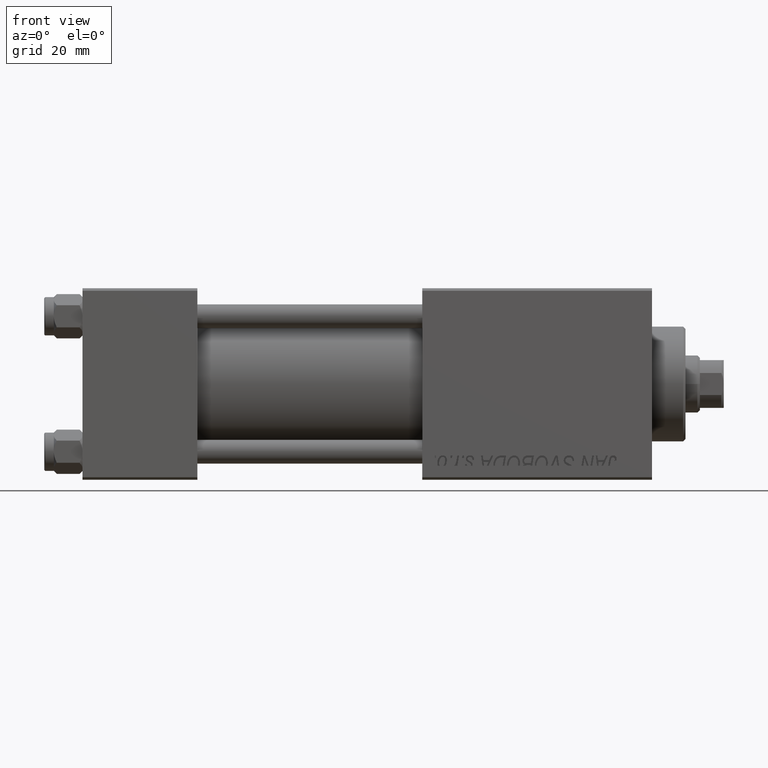
[diagram: clean part render]
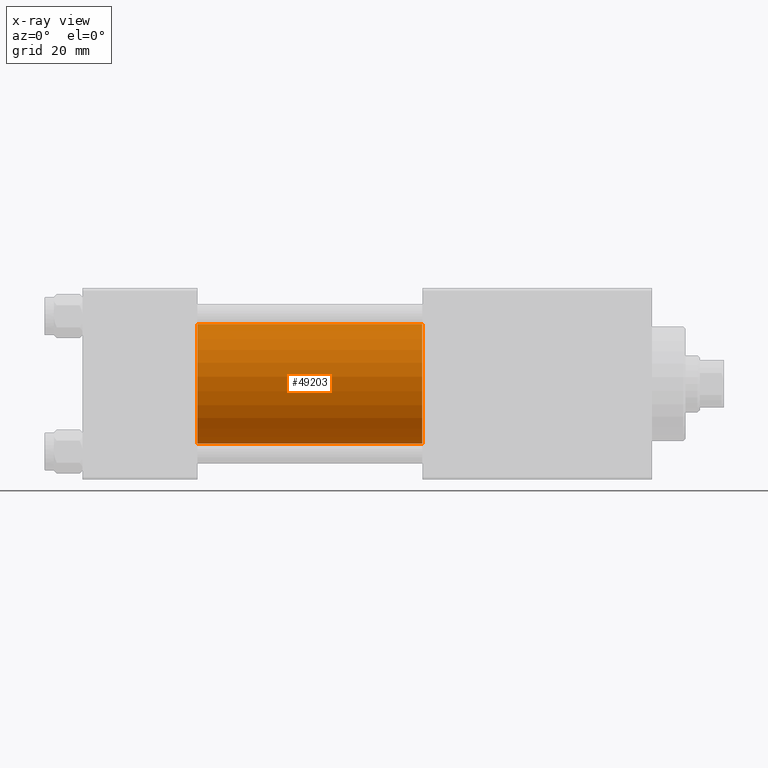
[diagram: x-ray — body ghosted, one internal face saturated and labeled with its STEP entity id]
A machine part, front view, then the same camera in x-ray: the body is ghosted and one INTERNAL B-rep face — a face not visible from any outside direction — is saturated and labeled: STEP entity #49203.
In plain terms, the highlighted cylindrical surface (partial cylindrical patch) has radius 12.5 mm, axis along (-1, -0, -0).
Its self-contained STEP definition (entity closure, byte-faithful):
#327 = DIRECTION ( 'NONE',  ( -1.000000000000000000, -0.000000000000000000, -0.000000000000000000 ) ) ;
#3810 = CIRCLE ( 'NONE', #5454, 12.49999999999999645 ) ;
#4096 = AXIS2_PLACEMENT_3D ( 'NONE', #21872, #6617, #45276 ) ;
#4123 = LINE ( 'NONE', #39476, #31820 ) ;
#5454 = AXIS2_PLACEMENT_3D ( 'NONE', #48836, #18049, #29260 ) ;
#6377 = DIRECTION ( 'NONE',  ( -1.000000000000000000, -0.000000000000000000, -0.000000000000000000 ) ) ;
#6617 = DIRECTION ( 'NONE',  ( 1.000000000000000000, 0.000000000000000000, 0.000000000000000000 ) ) ;
#8778 = VERTEX_POINT ( 'NONE', #19813 ) ;
#9858 = CARTESIAN_POINT ( 'NONE',  ( 71.00000000000001421, -2.602085213965210642E-15, 0.000000000000000000 ) ) ;
#14417 = CYLINDRICAL_SURFACE ( 'NONE', #35327, 12.49999999999999645 ) ;
#16088 = CARTESIAN_POINT ( 'NONE',  ( 71.00000000000001421, -2.602085213965210642E-15, 12.49999999999999645 ) ) ;
#17557 = LINE ( 'NONE', #25700, #22813 ) ;
#17928 = ORIENTED_EDGE ( 'NONE', *, *, #34117, .F. ) ;
#18049 = DIRECTION ( 'NONE',  ( 1.000000000000000000, 0.000000000000000000, 0.000000000000000000 ) ) ;
#19813 = CARTESIAN_POINT ( 'NONE',  ( 24.00000000000000000, -1.071276715031019515E-15, -12.49999999999999645 ) ) ;
#20174 = EDGE_CURVE ( 'NONE', #29678, #8778, #3810, .T. ) ;
#21542 = DIRECTION ( 'NONE',  ( 0.000000000000000000, 0.000000000000000000, 1.000000000000000000 ) ) ;
#21872 = CARTESIAN_POINT ( 'NONE',  ( 71.00000000000001421, -2.602085213965210642E-15, 0.000000000000000000 ) ) ;
#22186 = ORIENTED_EDGE ( 'NONE', *, *, #20174, .F. ) ;
#22813 = VECTOR ( 'NONE', #6377, 1000.000000000000000 ) ;
#25700 = CARTESIAN_POINT ( 'NONE',  ( 71.00000000000001421, -1.071276715031019515E-15, -12.49999999999999645 ) ) ;
#27585 = VERTEX_POINT ( 'NONE', #16088 ) ;
#29260 = DIRECTION ( 'NONE',  ( 0.000000000000000000, 0.000000000000000000, -1.000000000000000000 ) ) ;
#29678 = VERTEX_POINT ( 'NONE', #44279 ) ;
#29690 = FACE_OUTER_BOUND ( 'NONE', #33118, .T. ) ;
#30185 = DIRECTION ( 'NONE',  ( -1.000000000000000000, -0.000000000000000000, -0.000000000000000000 ) ) ;
#30310 = VERTEX_POINT ( 'NONE', #35411 ) ;
#30549 = EDGE_CURVE ( 'NONE', #30310, #8778, #17557, .T. ) ;
#31820 = VECTOR ( 'NONE', #327, 1000.000000000000000 ) ;
#32368 = EDGE_CURVE ( 'NONE', #27585, #30310, #43217, .T. ) ;
#33118 = EDGE_LOOP ( 'NONE', ( #35703, #48235, #22186, #17928 ) ) ;
#34117 = EDGE_CURVE ( 'NONE', #27585, #29678, #4123, .T. ) ;
#35327 = AXIS2_PLACEMENT_3D ( 'NONE', #9858, #30185, #21542 ) ;
#35411 = CARTESIAN_POINT ( 'NONE',  ( 71.00000000000001421, -1.071276715031019515E-15, -12.49999999999999645 ) ) ;
#35703 = ORIENTED_EDGE ( 'NONE', *, *, #32368, .T. ) ;
#39476 = CARTESIAN_POINT ( 'NONE',  ( 71.00000000000001421, -2.602085213965210642E-15, 12.49999999999999645 ) ) ;
#43217 = CIRCLE ( 'NONE', #4096, 12.49999999999999645 ) ;
#44279 = CARTESIAN_POINT ( 'NONE',  ( 24.00000000000000000, -2.602085213965210642E-15, 12.49999999999999645 ) ) ;
#45276 = DIRECTION ( 'NONE',  ( 0.000000000000000000, 0.000000000000000000, -1.000000000000000000 ) ) ;
#48235 = ORIENTED_EDGE ( 'NONE', *, *, #30549, .T. ) ;
#48836 = CARTESIAN_POINT ( 'NONE',  ( 24.00000000000000000, -2.602085213965210642E-15, 0.000000000000000000 ) ) ;
#49203 = ADVANCED_FACE ( 'NONE', ( #29690 ), #14417, .F. ) ;